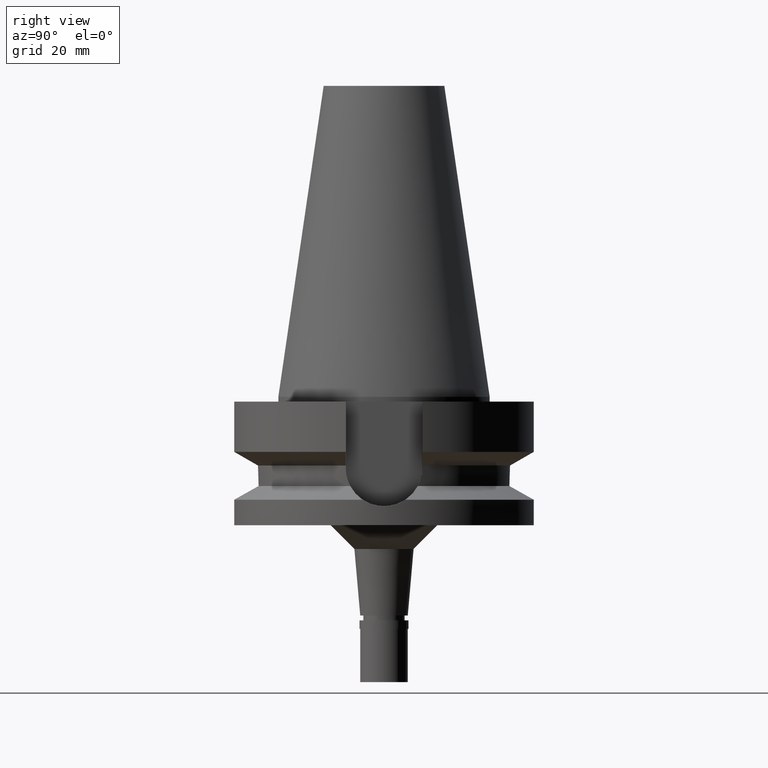
[diagram: clean part render]
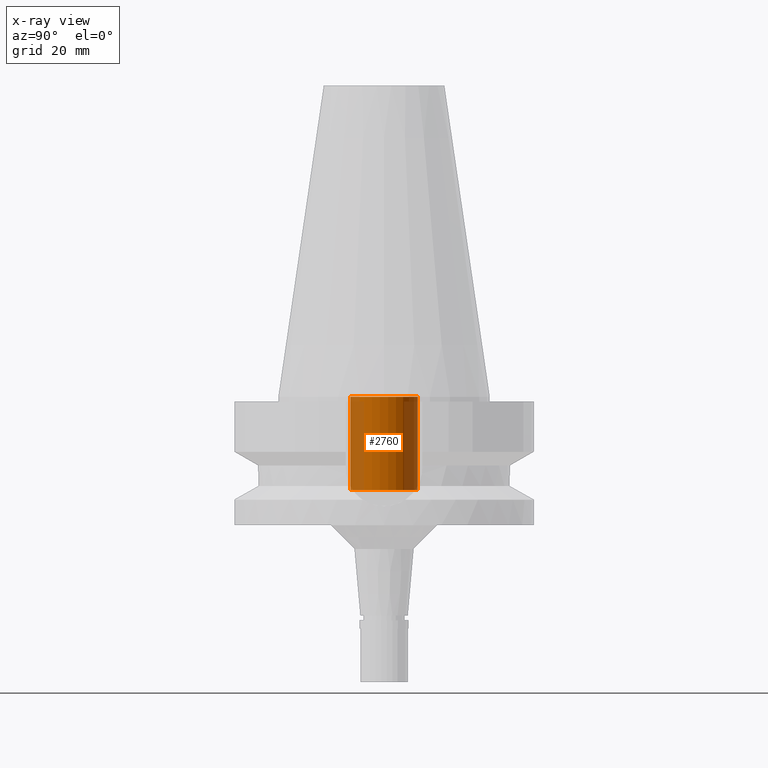
[diagram: x-ray — body ghosted, one internal face saturated and labeled with its STEP entity id]
A machine part, right view, then the same camera in x-ray: the body is ghosted and one INTERNAL B-rep face — a face not visible from any outside direction — is saturated and labeled: STEP entity #2760.
In plain terms, the highlighted cylindrical surface (edge-blend (fillet) strip) has radius 7.1 mm, axis along (0, 0, -1).
Its self-contained STEP definition (entity closure, byte-faithful):
#72 = DIRECTION ( 'NONE',  ( 0.0000000000000000000, -1.000000000000000000, 0.0000000000000000000 ) ) ;
#74 = CARTESIAN_POINT ( 'NONE',  ( 0.0000000000000000000, -7.100000000000000533, -1.136868377215999875E-13 ) ) ;
#124 = CARTESIAN_POINT ( 'NONE',  ( 0.0000000000000000000, 2.100085563517999935E-14, 71.48500000000001364 ) ) ;
#305 = CARTESIAN_POINT ( 'NONE',  ( 0.0000000000000000000, 7.100000000000000533, -19.59999999999999787 ) ) ;
#315 = AXIS2_PLACEMENT_3D ( 'NONE', #1484, #362, #2468 ) ;
#362 = DIRECTION ( 'NONE',  ( 0.0000000000000000000, 0.0000000000000000000, -1.000000000000000000 ) ) ;
#441 = VERTEX_POINT ( 'NONE', #2432 ) ;
#511 = AXIS2_PLACEMENT_3D ( 'NONE', #813, #1700, #72 ) ;
#519 = CARTESIAN_POINT ( 'NONE',  ( 0.0000000000000000000, -7.100000000000000533, -19.59999999999999787 ) ) ;
#579 = ORIENTED_EDGE ( 'NONE', *, *, #1205, .F. ) ;
#607 = FACE_OUTER_BOUND ( 'NONE', #1013, .T. ) ;
#784 = CIRCLE ( 'NONE', #315, 7.100000000000000533 ) ;
#813 = CARTESIAN_POINT ( 'NONE',  ( 0.0000000000000000000, 2.100085563517999935E-14, -1.136868377215999875E-13 ) ) ;
#836 = CIRCLE ( 'NONE', #511, 7.100000000000000533 ) ;
#1013 = EDGE_LOOP ( 'NONE', ( #1516, #1930, #1462, #579 ) ) ;
#1192 = DIRECTION ( 'NONE',  ( 0.0000000000000000000, 0.0000000000000000000, 1.000000000000000000 ) ) ;
#1205 = EDGE_CURVE ( 'NONE', #2543, #441, #2358, .T. ) ;
#1243 = EDGE_CURVE ( 'NONE', #2543, #1460, #784, .T. ) ;
#1288 = CYLINDRICAL_SURFACE ( 'NONE', #1321, 7.100000000000000533 ) ;
#1321 = AXIS2_PLACEMENT_3D ( 'NONE', #124, #1511, #2430 ) ;
#1432 = DIRECTION ( 'NONE',  ( 0.0000000000000000000, 0.0000000000000000000, 1.000000000000000000 ) ) ;
#1460 = VERTEX_POINT ( 'NONE', #2961 ) ;
#1462 = ORIENTED_EDGE ( 'NONE', *, *, #2126, .T. ) ;
#1484 = CARTESIAN_POINT ( 'NONE',  ( 0.0000000000000000000, 2.100085563517999935E-14, -19.59999999999999787 ) ) ;
#1511 = DIRECTION ( 'NONE',  ( 0.0000000000000000000, 0.0000000000000000000, -1.000000000000000000 ) ) ;
#1516 = ORIENTED_EDGE ( 'NONE', *, *, #1243, .T. ) ;
#1556 = VECTOR ( 'NONE', #1432, 1000.000000000000000 ) ;
#1700 = DIRECTION ( 'NONE',  ( 0.0000000000000000000, 0.0000000000000000000, 1.000000000000000000 ) ) ;
#1930 = ORIENTED_EDGE ( 'NONE', *, *, #2673, .T. ) ;
#1977 = VECTOR ( 'NONE', #1192, 1000.000000000000000 ) ;
#2126 = EDGE_CURVE ( 'NONE', #2268, #441, #836, .T. ) ;
#2268 = VERTEX_POINT ( 'NONE', #74 ) ;
#2358 = LINE ( 'NONE', #305, #1977 ) ;
#2430 = DIRECTION ( 'NONE',  ( 0.0000000000000000000, -1.000000000000000000, 0.0000000000000000000 ) ) ;
#2432 = CARTESIAN_POINT ( 'NONE',  ( 0.0000000000000000000, 7.100000000000000533, -1.136868377215999875E-13 ) ) ;
#2468 = DIRECTION ( 'NONE',  ( 0.0000000000000000000, 1.000000000000000000, 0.0000000000000000000 ) ) ;
#2543 = VERTEX_POINT ( 'NONE', #2847 ) ;
#2583 = LINE ( 'NONE', #519, #1556 ) ;
#2673 = EDGE_CURVE ( 'NONE', #1460, #2268, #2583, .T. ) ;
#2760 = ADVANCED_FACE ( 'NONE', ( #607 ), #1288, .F. ) ;
#2847 = CARTESIAN_POINT ( 'NONE',  ( 0.0000000000000000000, 7.100000000000000533, -19.59999999999999787 ) ) ;
#2961 = CARTESIAN_POINT ( 'NONE',  ( 0.0000000000000000000, -7.100000000000000533, -19.59999999999999787 ) ) ;